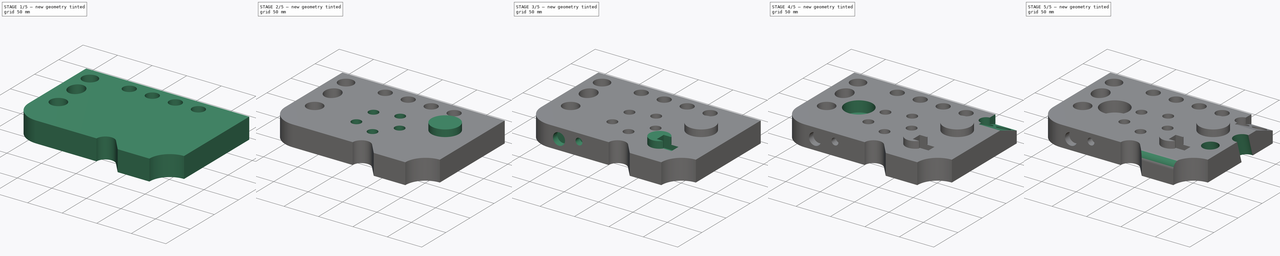
[diagram: build sequence overview — one tinted view per stage of 5, left to right]
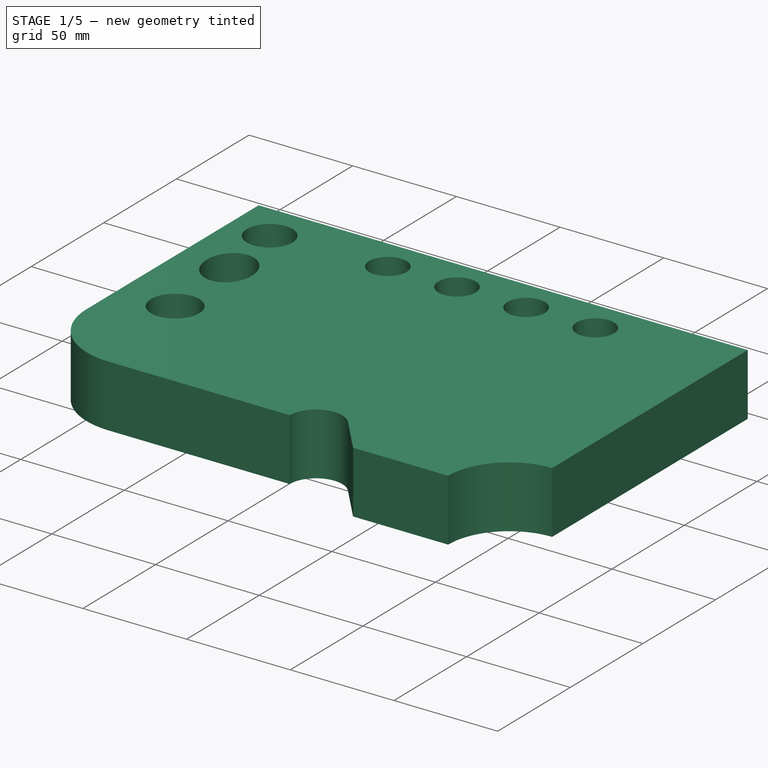
[diagram: stage 1 of 5 — iso view after this stage's code; geometry added in this stage tinted green]
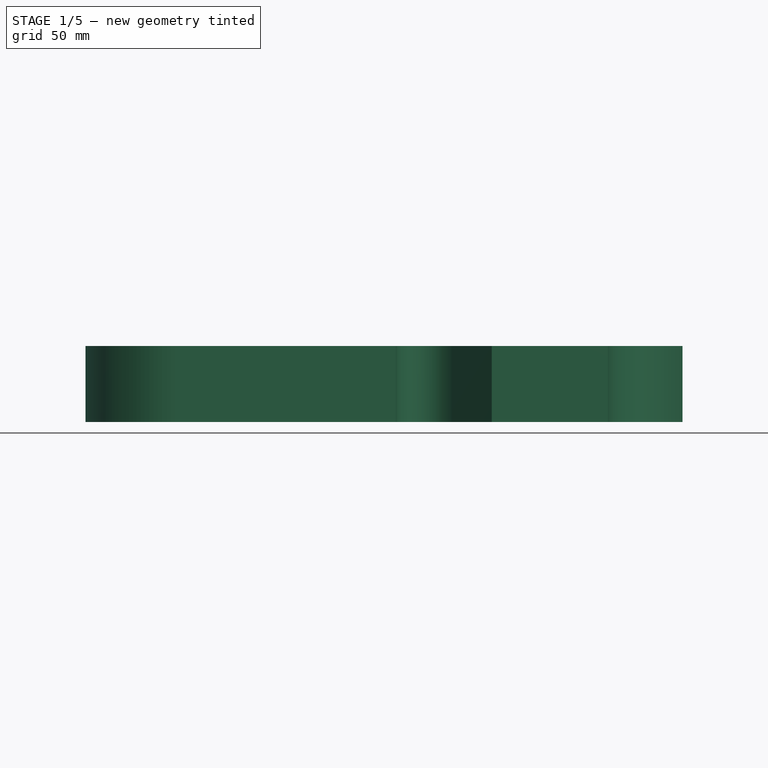
[diagram: stage 1 of 5 — front view after this stage's code; geometry added in this stage tinted green]
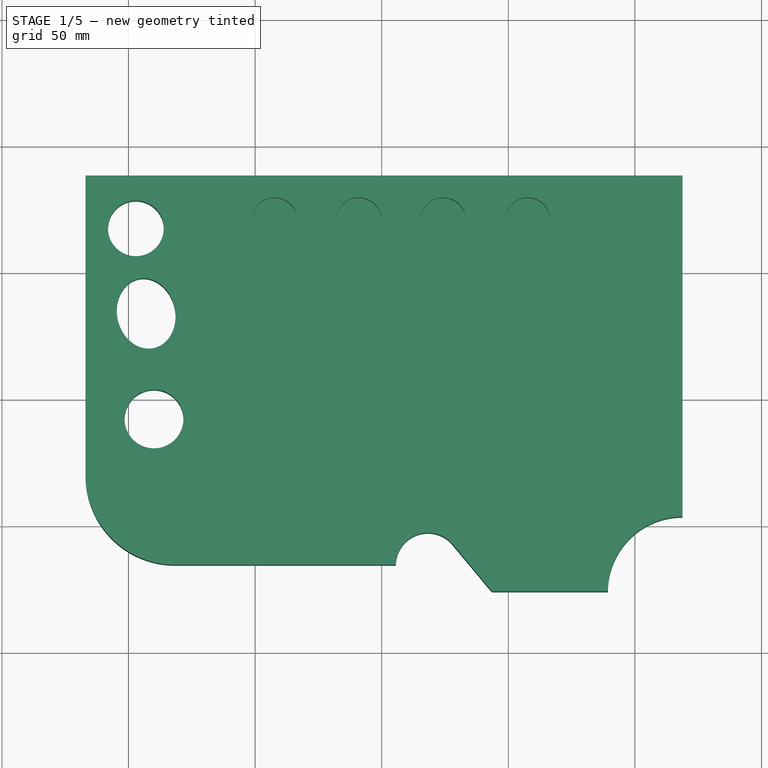
[diagram: stage 1 of 5 — top view after this stage's code; geometry added in this stage tinted green]
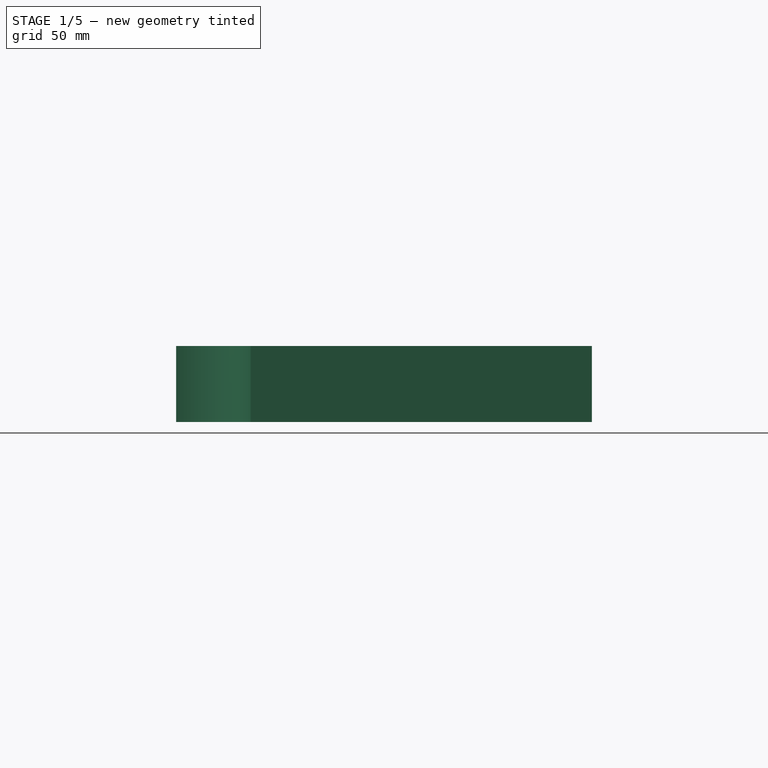
[diagram: stage 1 of 5 — right view after this stage's code; geometry added in this stage tinted green]
FCSTD DOCUMENT  (FreeCAD 0.17R13386 (Git))
Label: drilling
License: All rights reserved
LicenseURL: http://en.wikipedia.org/wiki/All_rights_reserved
objects: Sketcher::SketchObject×12, PartDesign::Pocket×9, PartDesign::Pad×3, PartDesign::LinearPattern×1, PartDesign::PolarPattern×1, PartDesign::Plane×1, PartDesign::Fillet×1, PartDesign::Body×1
note: 41 computed .brp shape members not serialized (recipe doc carries the construction recipe); baked Part::Feature solids carry a one-line shape summary decoded from their .brp

FEATURE [Sketcher::SketchObject] Sketch
  MapMode = 5
  Support = -> [XY_Plane]
  sketch-geometry (20):
    g0: LineSegment StartX=-116.999 StartY=88.1621 StartZ=0 EndX=-116.999 EndY=-30.1362 EndZ=0
    g1: ArcOfCircle CenterX=-81.604 CenterY=-30.1362 CenterZ=0 NormalX=0 NormalY=0 NormalZ=1 AngleXU=0 Radius=35.3948 StartAngle=3.14159 EndAngle=4.71239
    g2: LineSegment StartX=-81.604 StartY=-65.531 StartZ=0 EndX=5.60933 EndY=-65.531 EndZ=0
    g3: ArcOfCircle CenterX=18.2645 CenterY=-65.531 CenterZ=0 NormalX=0 NormalY=0 NormalZ=1 AngleXU=0 Radius=12.6552 StartAngle=0.694689 EndAngle=3.14159
    g4: LineSegment StartX=27.9869 StartY=-57.4298 StartZ=0 EndX=43.4744 EndY=-76.0167 EndZ=0
    g5: LineSegment StartX=43.4744 StartY=-76.0167 StartZ=0 EndX=89.3436 EndY=-76.0167 EndZ=0
    g6: ArcOfCircle CenterX=118.807 CenterY=-76.0167 CenterZ=0 NormalX=0 NormalY=0 NormalZ=1 AngleXU=0 Radius=29.4632 StartAngle=1.5708 EndAngle=3.14159
    g7: LineSegment StartX=118.807 StartY=-46.5535 StartZ=0 EndX=118.807 EndY=88.1621 EndZ=0
    g8: LineSegment StartX=118.807 StartY=88.1621 StartZ=0 EndX=-116.999 EndY=88.1621 EndZ=0
    g9: Circle CenterX=-97.097 CenterY=67.3199 CenterZ=0 NormalX=0 NormalY=0 NormalZ=1 AngleXU=0 Radius=11
    g10: Ellipse CenterX=-93.053 CenterY=33.7236 CenterZ=0 NormalX=0 NormalY=0 NormalZ=1 MajorRadius=14.0364 MinorRadius=11.4718 AngleXU=-1.34732
    g11: LineSegment [constr] StartX=-89.9422 StartY=20.0362 StartZ=0 EndX=-96.1637 EndY=47.411 EndZ=0
    g12: LineSegment [constr] StartX=-81.8664 StartY=36.266 StartZ=0 EndX=-104.24 EndY=31.1812 EndZ=0
    g13: GeomPoint [constr] X=-91.2605 Y=25.8366 Z=0
    g14: GeomPoint [constr] X=-94.8455 Y=41.6107 Z=0
    g15: Ellipse CenterX=-89.9422 CenterY=-7.96069 CenterZ=0 NormalX=0 NormalY=0 NormalZ=1 MajorRadius=11.6225 MinorRadius=11.6225 AngleXU=-1.00227
    g16: LineSegment [constr] StartX=-83.6848 StartY=-17.755 StartZ=0 EndX=-96.1996 EndY=1.83356 EndZ=0
    g17: LineSegment [constr] StartX=-80.1479 StartY=-1.70325 StartZ=0 EndX=-99.7365 EndY=-14.2181 EndZ=0
    g18: GeomPoint [constr] X=-89.9345 Y=-7.97276 Z=0
    g19: GeomPoint [constr] X=-89.9499 Y=-7.94863 Z=0
  constraints (20):
    c: Vertical(g0)
    c: Tangent(g0,g1) = -1.5708
    c: Coincident(g1,g2)
    c: Horizontal(g2)
    c: Perpendicular(g2,g3) = 4.71239
    c: Tangent(g3,g4) = 1.5708
    c: Coincident(g4,g5)
    c: Horizontal(g5)
    c: Perpendicular(g5,g6) = 4.71239
    c: Coincident(g6,g7)
    c: Vertical(g7)
    c: Coincident(g7,g8)
    c: Coincident(g8,g0)
    c: Horizontal(g8)
    c: Tangent(g2,g1)
    c: Perpendicular(g6,g7)
    c: Radius(g9) = 11
    c: InternalAlignment(g11-g14 -> g10) x4
    c: InternalAlignment(g16-g19 -> g15) x4
    c: Equal(g16,g17)
FEATURE [PartDesign::Pad] Pad
  Length = 30
  Length2 = 100
  Profile = -> Sketch
  Type = 0
FEATURE [Sketcher::SketchObject] Sketch001
  MapMode = 5
  Placement = pos=(0,0,30) rot=(0,0,1;0rad)
  Support = -> [Pad]
  sketch-geometry (1):
    g0: Circle CenterX=-42.3864 CenterY=70.5572 CenterZ=0 NormalX=0 NormalY=0 NormalZ=1 AngleXU=0 Radius=9
  constraints (1):
    c: Radius(g0) = 9
FEATURE [PartDesign::Pocket] Pocket
  BaseFeature = -> Pad
  Length = 20
  Length2 = 100
  Profile = -> Sketch001
  Type = 0
FEATURE [PartDesign::LinearPattern] LinearPattern
  BaseFeature = -> Pocket
  Direction = -> Sketch001 [H_Axis]
  Length = 100
  Occurrences = 4
  Originals = -> [Pocket]
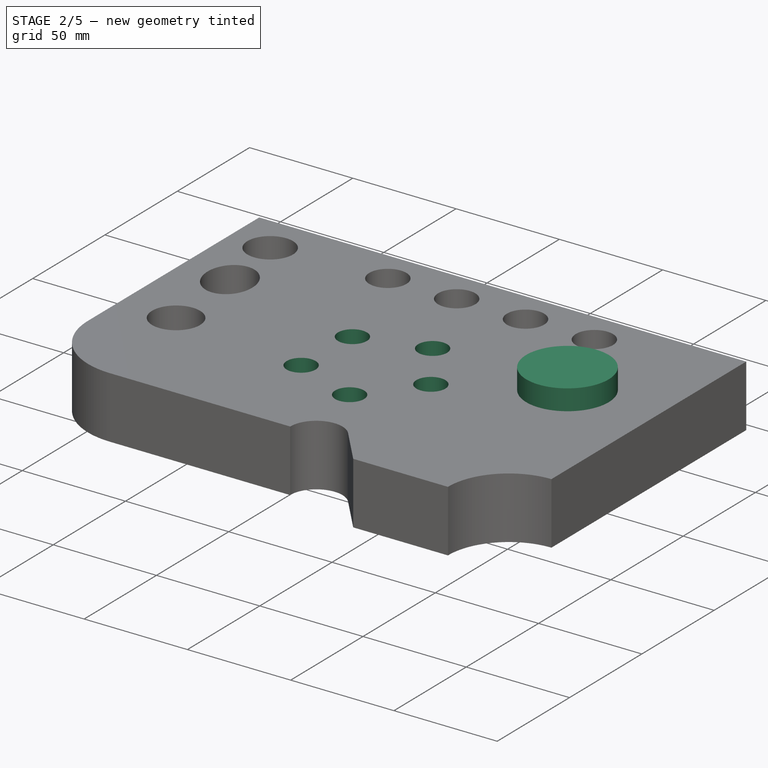
[diagram: stage 2 of 5 — iso view after this stage's code; geometry added in this stage tinted green]
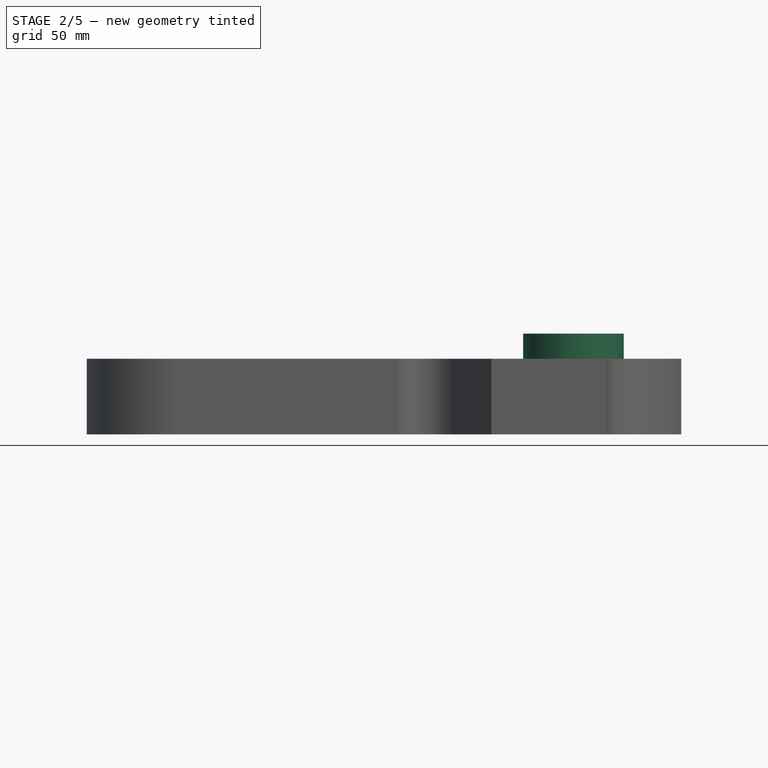
[diagram: stage 2 of 5 — front view after this stage's code; geometry added in this stage tinted green]
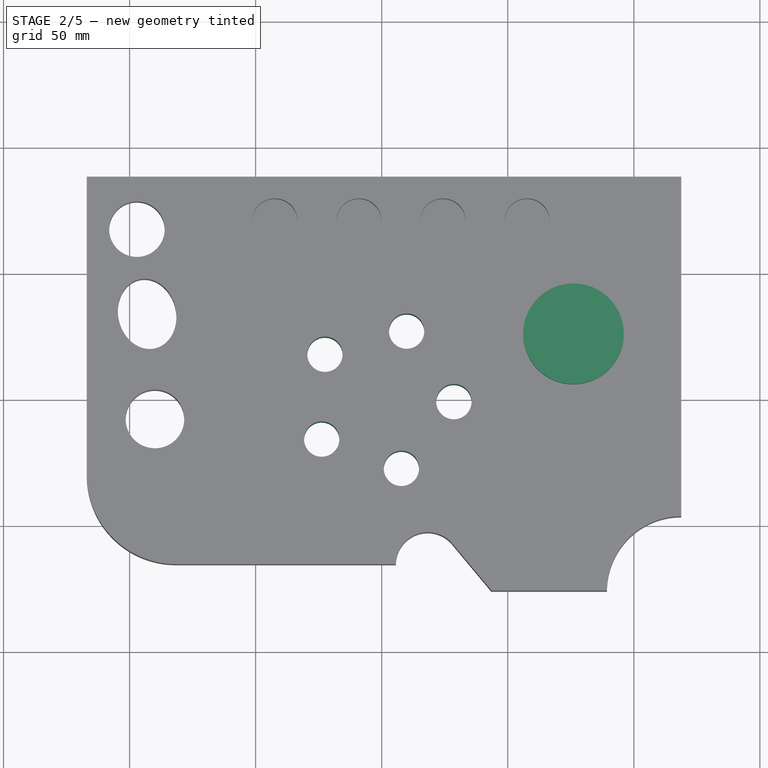
[diagram: stage 2 of 5 — top view after this stage's code; geometry added in this stage tinted green]
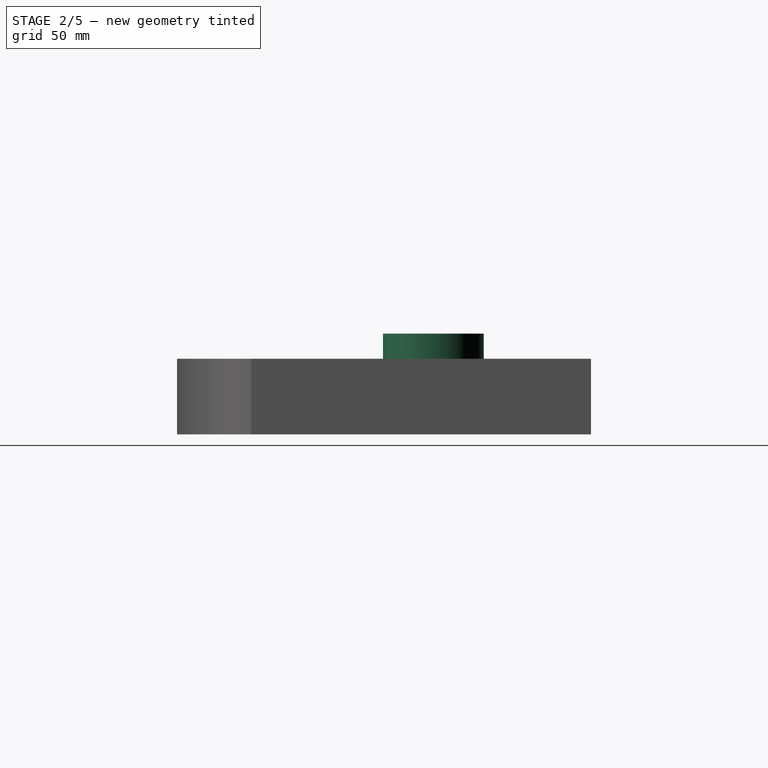
[diagram: stage 2 of 5 — right view after this stage's code; geometry added in this stage tinted green]
FEATURE [Sketcher::SketchObject] Sketch002
  MapMode = 5
  Placement = pos=(0,0,30) rot=(0,0,1;0rad)
  Support = -> [LinearPattern]
  sketch-geometry (1):
    g0: Circle CenterX=-22.5175 CenterY=17.7062 CenterZ=0 NormalX=0 NormalY=0 NormalZ=1 AngleXU=0 Radius=7
  constraints (1):
    c: Radius(g0) = 7
FEATURE [PartDesign::Pocket] Pocket001
  BaseFeature = -> LinearPattern
  Length = 50
  Length2 = 100
  Profile = -> Sketch002
  Type = 0
FEATURE [PartDesign::PolarPattern] PolarPattern
  Angle = 360
  Axis = -> Sketch002 [N_Axis]
  BaseFeature = -> Pocket001
  Occurrences = 5
  Originals = -> [Pocket001]
FEATURE [Sketcher::SketchObject] Sketch003
  MapMode = 5
  Placement = pos=(0,0,30) rot=(0,0,1;0rad)
  Support = -> [PolarPattern]
  sketch-geometry (1):
    g0: Circle CenterX=76.0318 CenterY=25.6538 CenterZ=0 NormalX=0 NormalY=0 NormalZ=1 AngleXU=0 Radius=19.9679
FEATURE [PartDesign::Pad] Pad001
  BaseFeature = -> PolarPattern
  Length = 10
  Length2 = 100
  Profile = -> Sketch003
  Type = 0
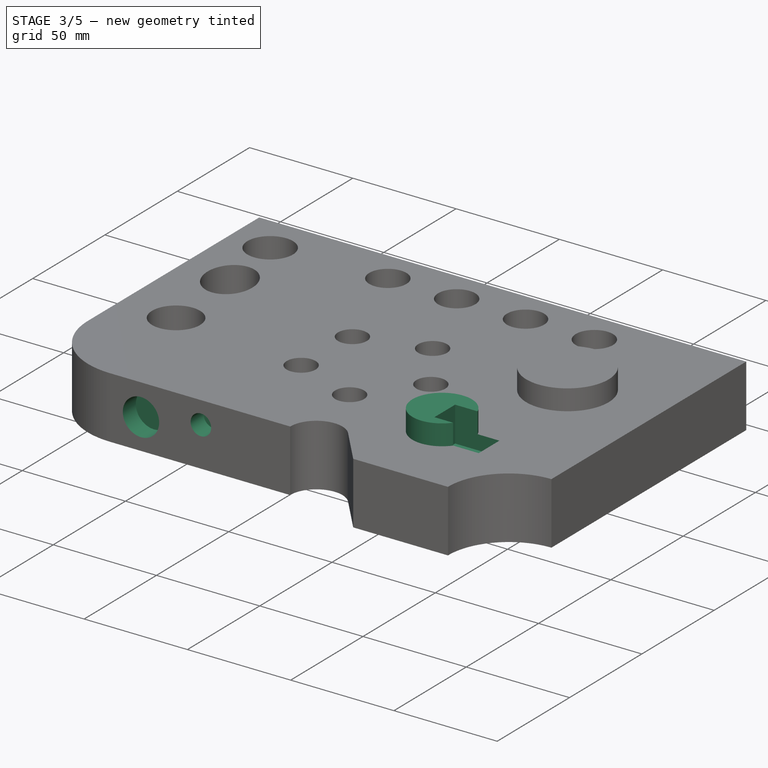
[diagram: stage 3 of 5 — iso view after this stage's code; geometry added in this stage tinted green]
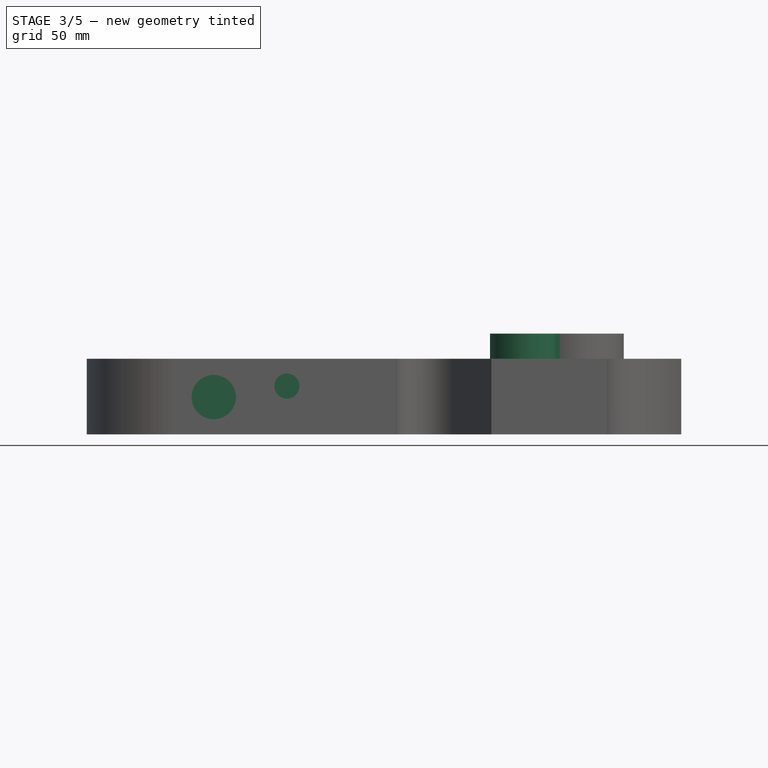
[diagram: stage 3 of 5 — front view after this stage's code; geometry added in this stage tinted green]
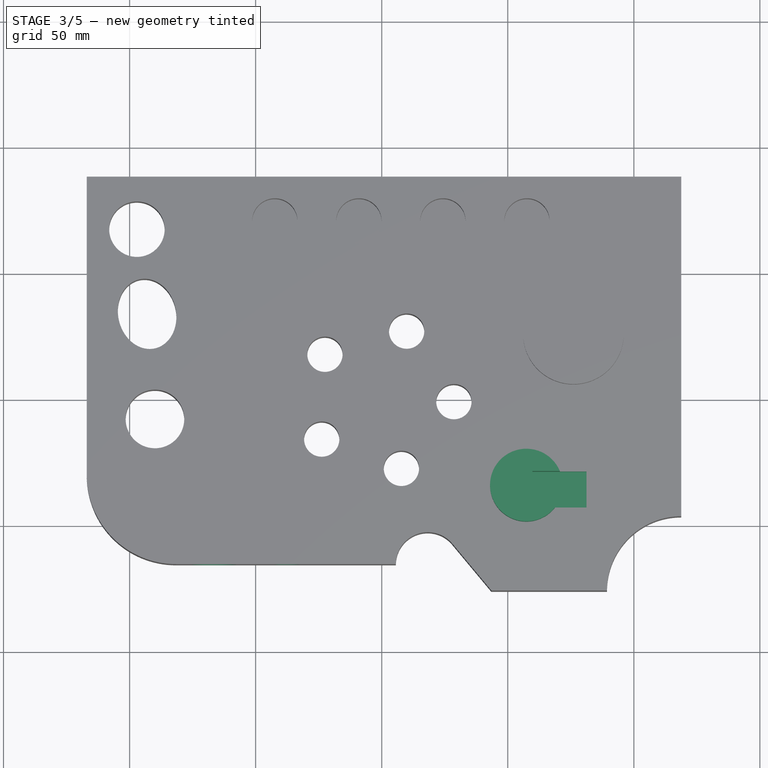
[diagram: stage 3 of 5 — top view after this stage's code; geometry added in this stage tinted green]
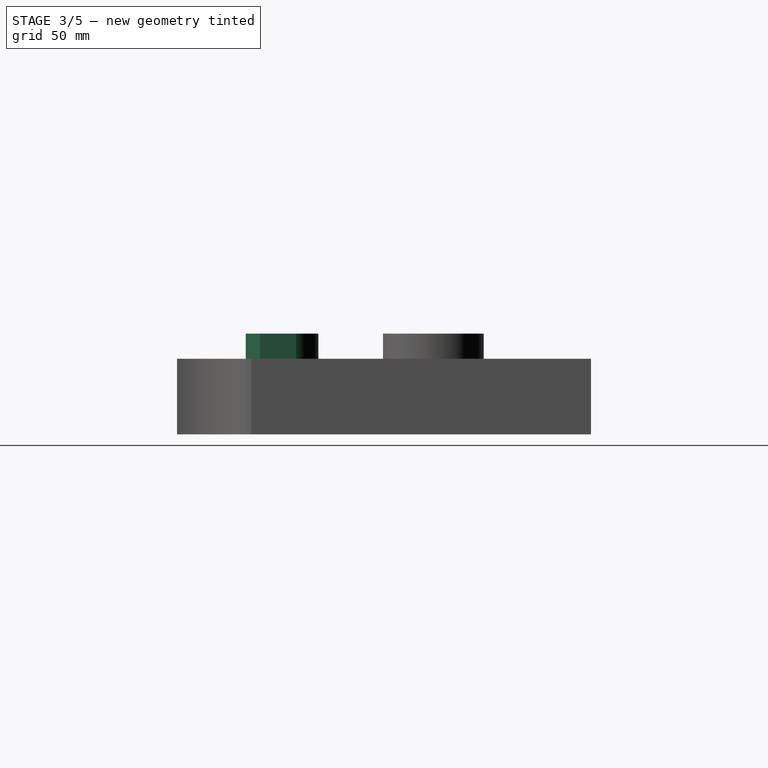
[diagram: stage 3 of 5 — right view after this stage's code; geometry added in this stage tinted green]
FEATURE [Sketcher::SketchObject] Sketch004
  MapMode = 5
  Placement = pos=(0,0,30) rot=(0,0,1;0rad)
  Support = -> [Pad001]
  sketch-geometry (1):
    g0: Circle CenterX=57.3551 CenterY=-34.35 CenterZ=0 NormalX=0 NormalY=0 NormalZ=1 AngleXU=0 Radius=14.3991
FEATURE [PartDesign::Pad] Pad002
  BaseFeature = -> Pad001
  Length = 10
  Length2 = 100
  Profile = -> Sketch004
  Type = 0
FEATURE [Sketcher::SketchObject] Sketch005
  MapMode = 5
  Placement = pos=(0,0,40) rot=(0,0,1;0rad)
  Support = -> [Pad002]
  sketch-geometry (4):
    g0: LineSegment StartX=59.7394 StartY=-28.7867 StartZ=0 EndX=81.1977 EndY=-28.7867 EndZ=0
    g1: LineSegment StartX=81.1977 StartY=-28.7867 StartZ=0 EndX=81.1977 EndY=-43.0923 EndZ=0
    g2: LineSegment StartX=81.1977 StartY=-43.0923 StartZ=0 EndX=59.7394 EndY=-43.0923 EndZ=0
    g3: LineSegment StartX=59.7394 StartY=-43.0923 StartZ=0 EndX=59.7394 EndY=-28.7867 EndZ=0
  constraints (8):
    c: Coincident(g0,g1)
    c: Coincident(g1,g2)
    c: Coincident(g2,g3)
    c: Coincident(g3,g0)
    c: Horizontal(g0)
    c: Horizontal(g2)
    c: Vertical(g1)
    c: Vertical(g3)
FEATURE [PartDesign::Pocket] Pocket002
  BaseFeature = -> Pad002
  Length = 17
  Length2 = 100
  Profile = -> Sketch005
  Type = 0
FEATURE [Sketcher::SketchObject] Sketch006
  MapMode = 5
  Placement = pos=(0,-65.531,0) rot=(1,0,0;1.5708rad)
  Support = -> [Pocket002]
  sketch-geometry (2):
    g0: Circle CenterX=-66.6262 CenterY=14.8014 CenterZ=0 NormalX=0 NormalY=0 NormalZ=1 AngleXU=0 Radius=8.79632
    g1: Circle CenterX=-37.6177 CenterY=19.1725 CenterZ=0 NormalX=0 NormalY=0 NormalZ=1 AngleXU=0 Radius=4.97911
FEATURE [PartDesign::Pocket] Pocket003
  BaseFeature = -> Pocket002
  Length = 9
  Length2 = 100
  Profile = -> Sketch006
  Type = 0
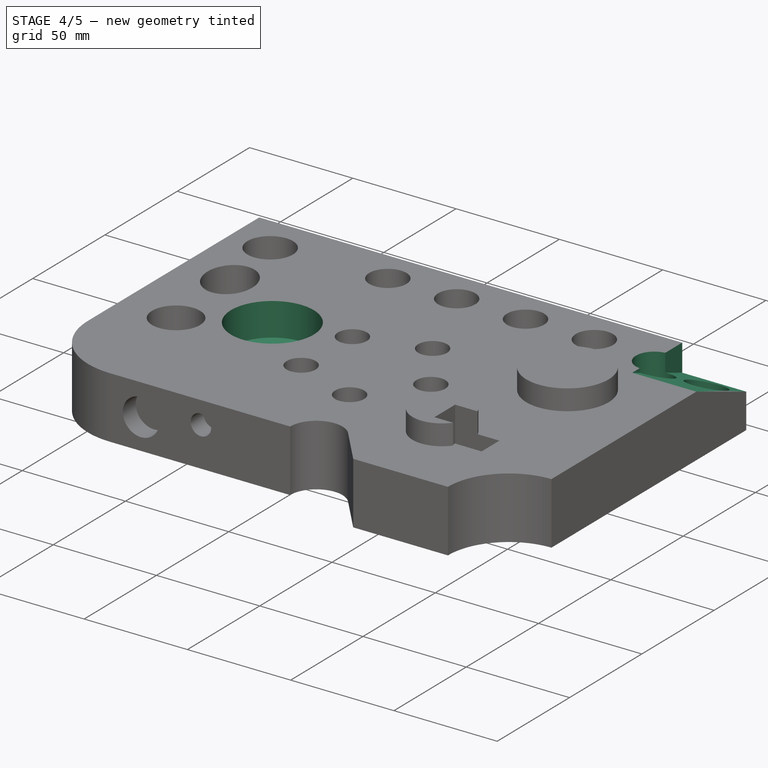
[diagram: stage 4 of 5 — iso view after this stage's code; geometry added in this stage tinted green]
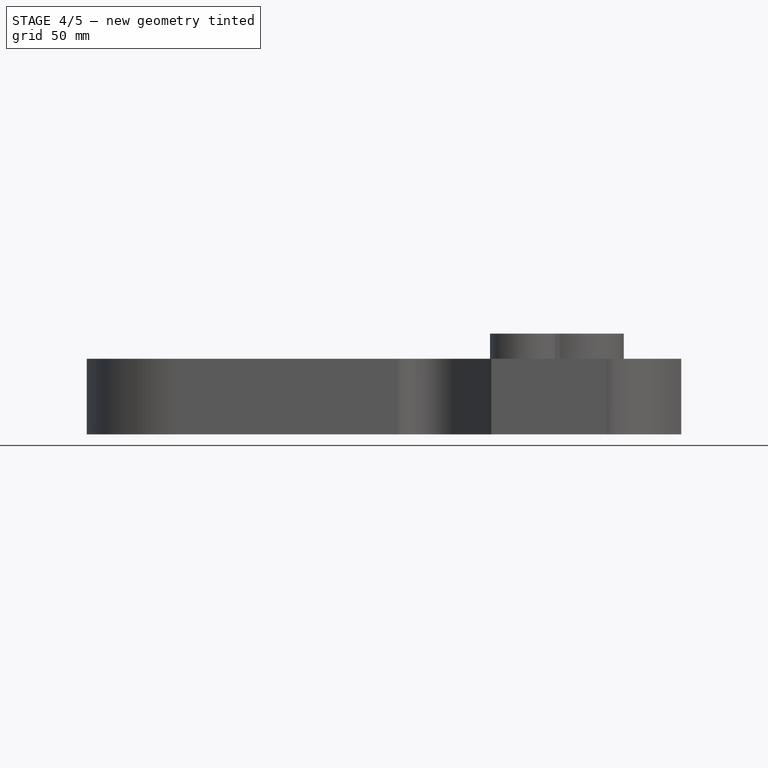
[diagram: stage 4 of 5 — front view after this stage's code; geometry added in this stage tinted green]
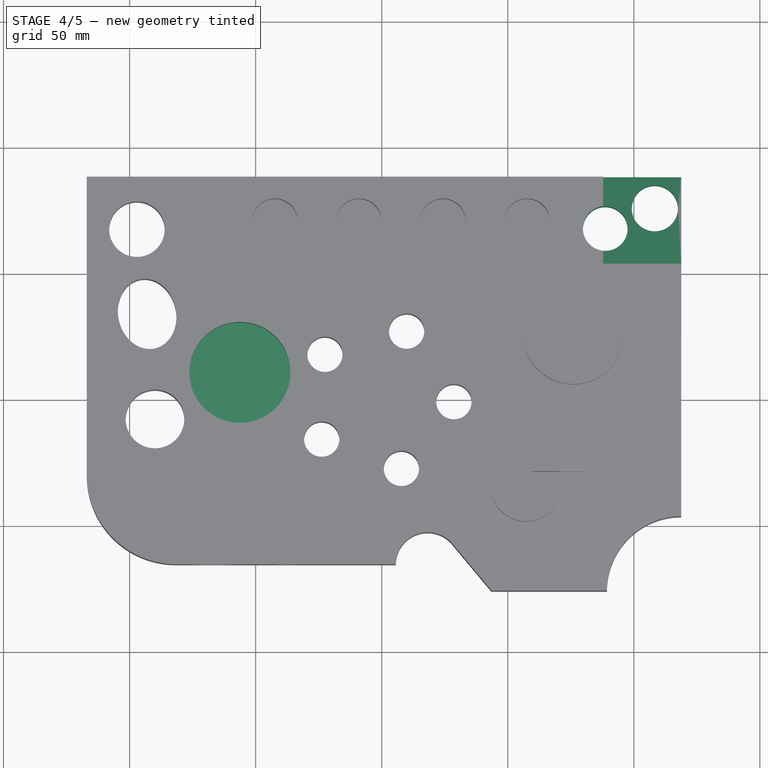
[diagram: stage 4 of 5 — top view after this stage's code; geometry added in this stage tinted green]
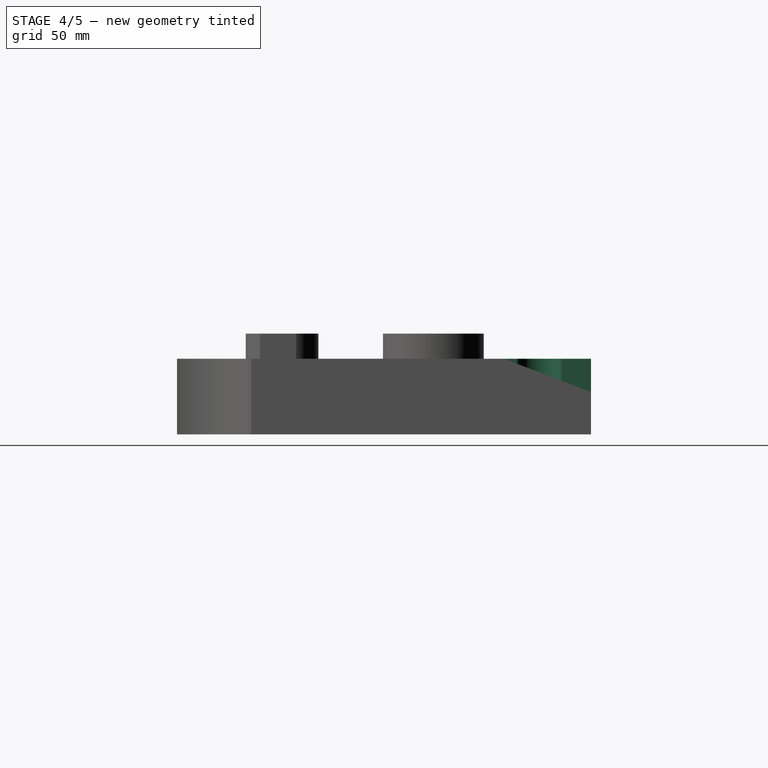
[diagram: stage 4 of 5 — right view after this stage's code; geometry added in this stage tinted green]
FEATURE [Sketcher::SketchObject] Sketch007
  MapMode = 5
  Placement = pos=(0,0,30) rot=(0,0,1;0rad)
  Support = -> [Pocket003]
  sketch-geometry (2):
    g0: Circle CenterX=108.319 CenterY=75.7213 CenterZ=0 NormalX=0 NormalY=0 NormalZ=1 AngleXU=0 Radius=9.1536
    g1: Circle CenterX=88.66 CenterY=67.6265 CenterZ=0 NormalX=0 NormalY=0 NormalZ=1 AngleXU=0 Radius=8.86485
FEATURE [PartDesign::Pocket] Pocket004
  BaseFeature = -> Pocket003
  Length = 5
  Length2 = 100
  Profile = -> Sketch007
  Type = 1
FEATURE [Sketcher::SketchObject] Sketch008
  MapMode = 5
  Placement = pos=(118.807,0,0) rot=(0.57735,0.57735,0.57735;2.0944rad)
  Support = -> [Pocket004]
  sketch-geometry (3):
    g0: LineSegment StartX=50.4593 StartY=31.2264 StartZ=0 EndX=92.6086 EndY=15.1419 EndZ=0
    g1: LineSegment StartX=92.6086 StartY=15.1419 StartZ=0 EndX=92.6086 EndY=31.2264 EndZ=0
    g2: LineSegment StartX=92.6086 StartY=31.2264 StartZ=0 EndX=50.4593 EndY=31.2264 EndZ=0
  constraints (5):
    c: Coincident(g0,g1)
    c: Vertical(g1)
    c: Coincident(g1,g2)
    c: Coincident(g2,g0)
    c: Horizontal(g2)
FEATURE [PartDesign::Pocket] Pocket005
  BaseFeature = -> Pocket004
  Length = 31
  Length2 = 100
  Profile = -> Sketch008
  Type = 0
FEATURE [Sketcher::SketchObject] Sketch009
  MapMode = 5
  Placement = pos=(0,0,30) rot=(0,0,1;0rad)
  Support = -> [Pocket005]
  sketch-geometry (1):
    g0: Circle CenterX=-56.254 CenterY=10.5056 CenterZ=0 NormalX=0 NormalY=0 NormalZ=1 AngleXU=0 Radius=20.0224
FEATURE [PartDesign::Pocket] Pocket006
  BaseFeature = -> Pocket005
  Length = 16
  Length2 = 100
  Profile = -> Sketch009
  Type = 0
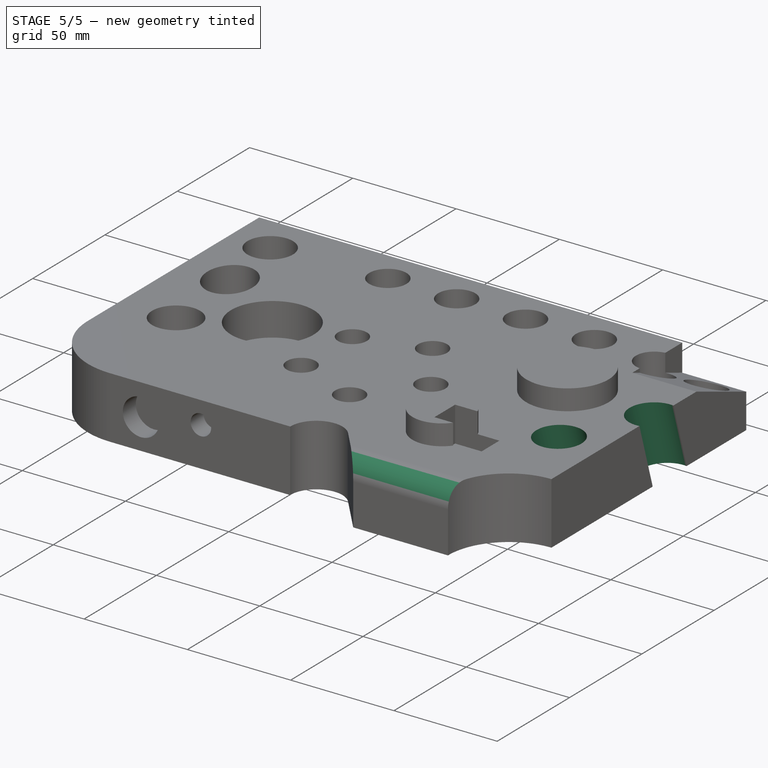
[diagram: stage 5 of 5 — iso view after this stage's code; geometry added in this stage tinted green]
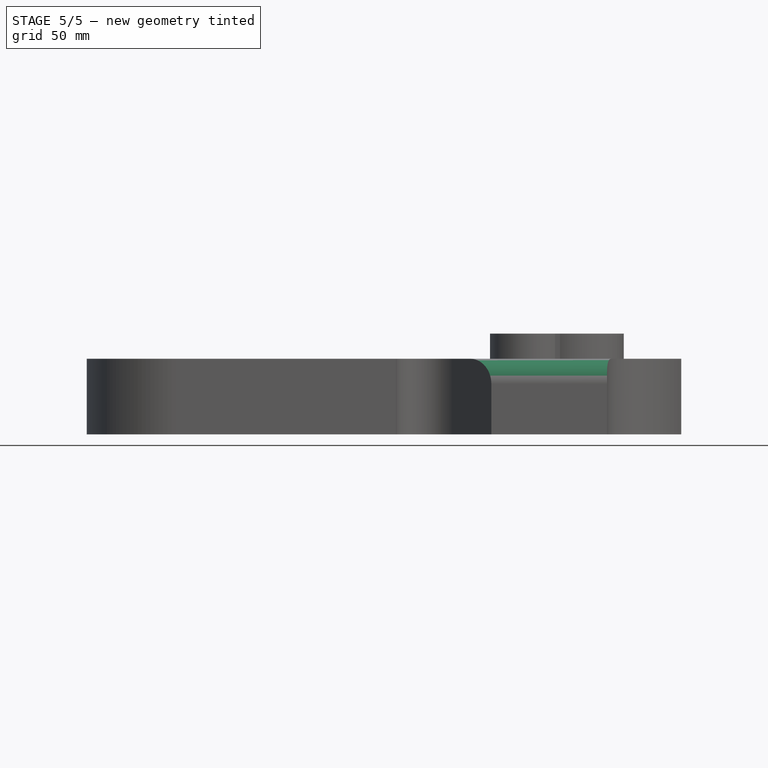
[diagram: stage 5 of 5 — front view after this stage's code; geometry added in this stage tinted green]
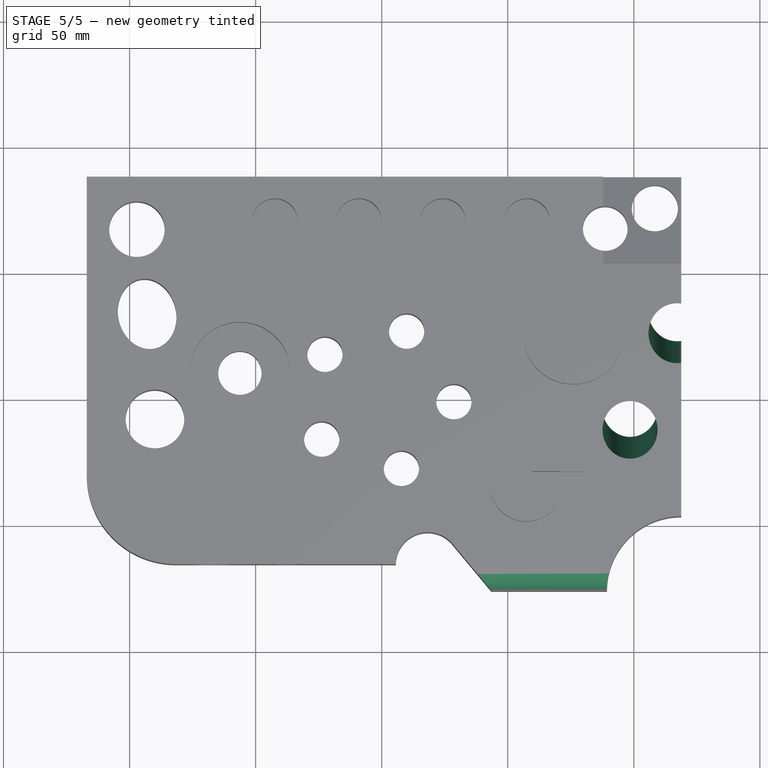
[diagram: stage 5 of 5 — top view after this stage's code; geometry added in this stage tinted green]
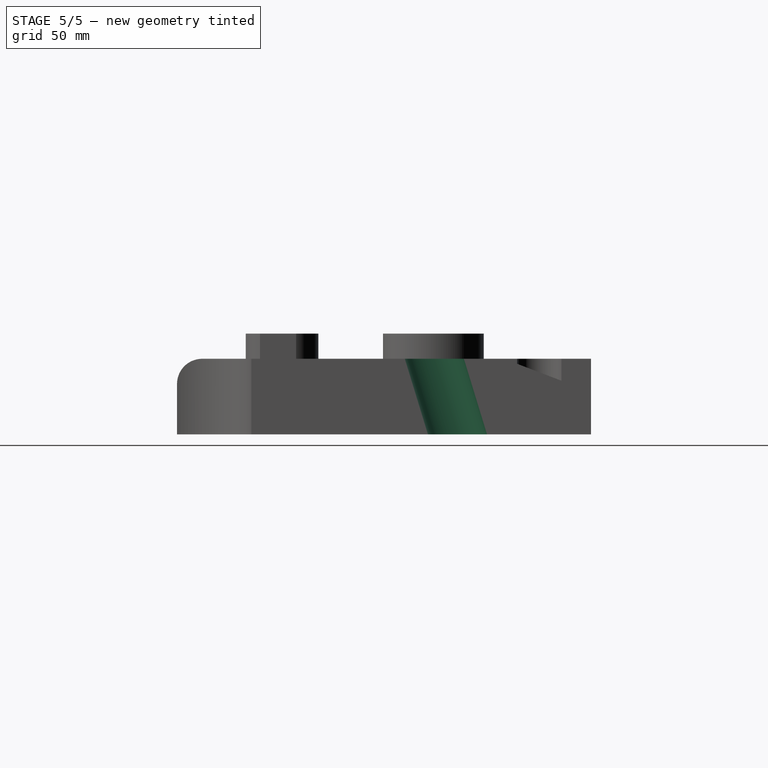
[diagram: stage 5 of 5 — right view after this stage's code; geometry added in this stage tinted green]
FEATURE [Sketcher::SketchObject] Sketch010
  ExternalGeometry = -> [Pocket006]
  MapMode = 5
  Placement = pos=(0,0,14) rot=(0,0,1;0rad)
  Support = -> [Pocket006]
  sketch-geometry (1):
    g0: Circle CenterX=-56.254 CenterY=10.5056 CenterZ=0 NormalX=0 NormalY=0 NormalZ=1 AngleXU=0 Radius=8.59337
  constraints (1):
    c: Coincident(g0,g-3)
FEATURE [PartDesign::Pocket] Pocket007
  BaseFeature = -> Pocket006
  Length = 5
  Length2 = 100
  Profile = -> Sketch010
  Type = 1
FEATURE [PartDesign::Plane] DatumPlane
  Placement = pos=(0,0,75) rot=(1,0,0;0.296706rad)
FEATURE [Sketcher::SketchObject] Sketch011
  MapMode = 5
  Placement = pos=(0,0,75) rot=(1,0,0;0.296706rad)
  Support = -> [DatumPlane]
  sketch-geometry (2):
    g0: Circle CenterX=117.146 CenterY=11.7515 CenterZ=0 NormalX=0 NormalY=0 NormalZ=1 AngleXU=0 Radius=11.3329
    g1: Circle CenterX=98.4872 CenterY=-24.9226 CenterZ=0 NormalX=0 NormalY=0 NormalZ=1 AngleXU=0 Radius=10.919
FEATURE [PartDesign::Pocket] Pocket008
  BaseFeature = -> Pocket007
  Length = 5
  Length2 = 100
  Profile = -> Sketch011
  Type = 1
FEATURE [PartDesign::Fillet] Fillet001
  Base = -> Pocket008 [Edge36]
  BaseFeature = -> Pocket008
  Radius = 10
FEATURE [PartDesign::Body] Body
  Group = -> [Sketch,Pad,Sketch001,Pocket,LinearPattern,Sketch002,Pocket001,PolarPattern,Sketch003,Pad001,Sketch004,Pad002,Sketch005,Pocket002,Sketch006,Pocket003,Sketch007,Pocket004,Sketch008,Pocket005,Sketch009,Pocket006,Sketch010,Pocket007,DatumPlane,Sketch011,Pocket008,Fillet001]
  Origin = -> BodyOrigin
  Tip = -> Fillet001
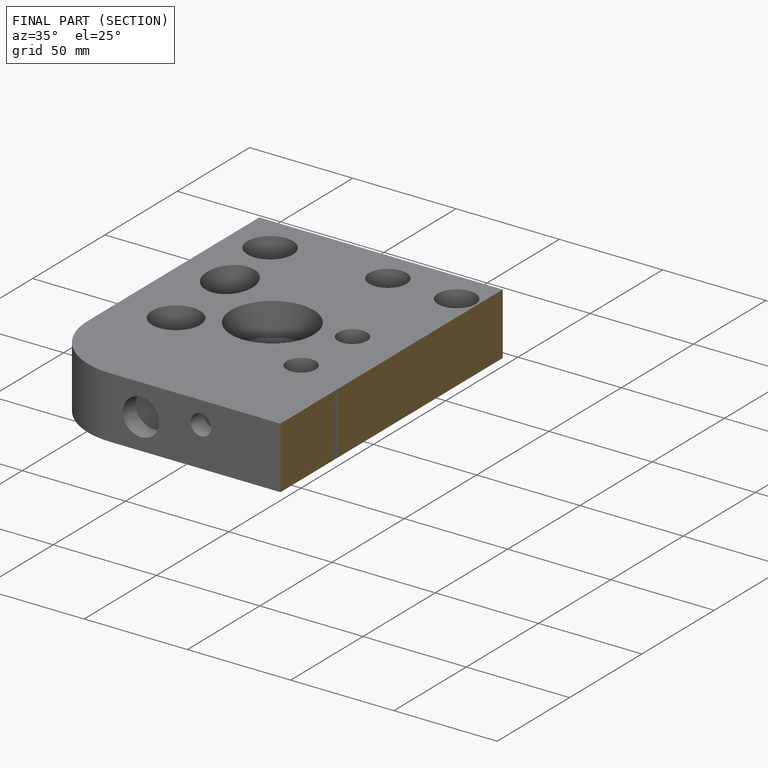
[diagram: finished part — half-section view (interior)]
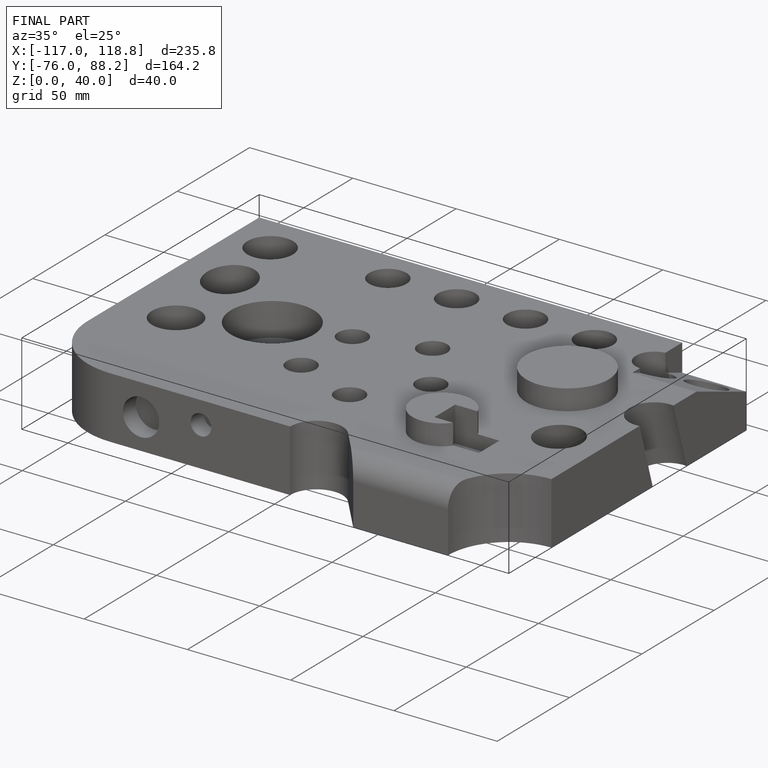
[diagram: finished part — iso view with bounding-box wireframe]
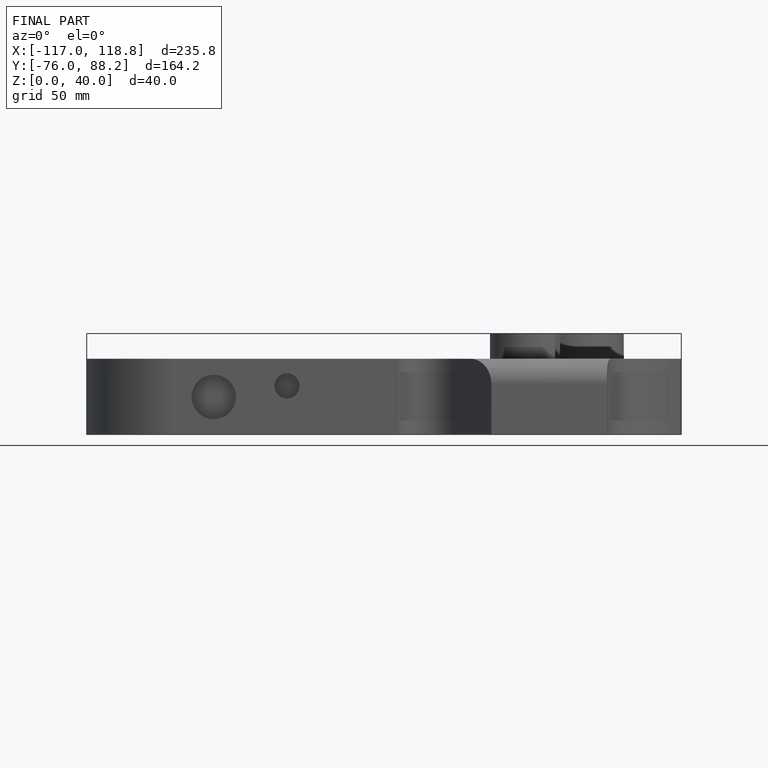
[diagram: finished part — front view with bounding-box wireframe]
